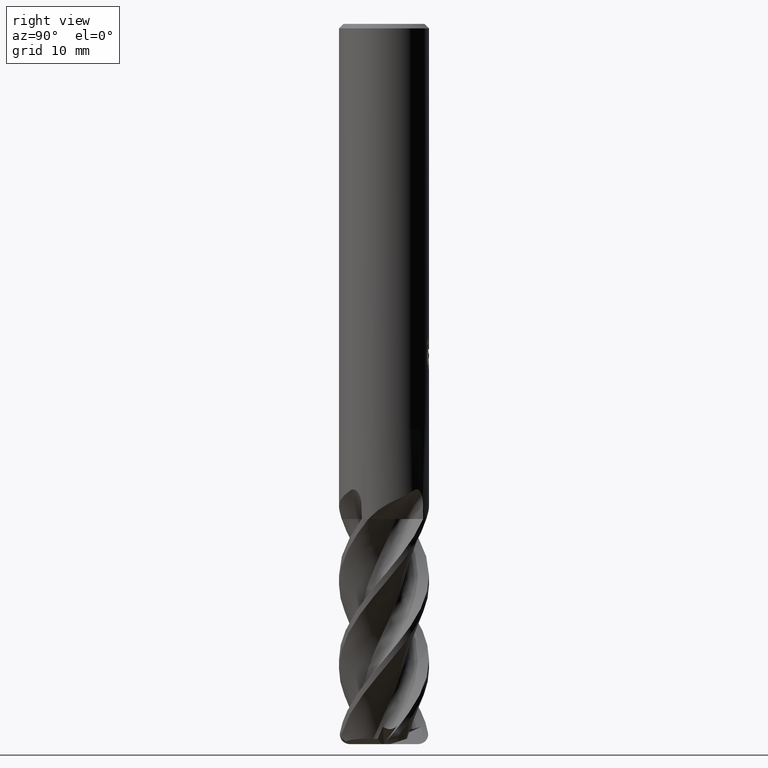
[diagram: clean part render]
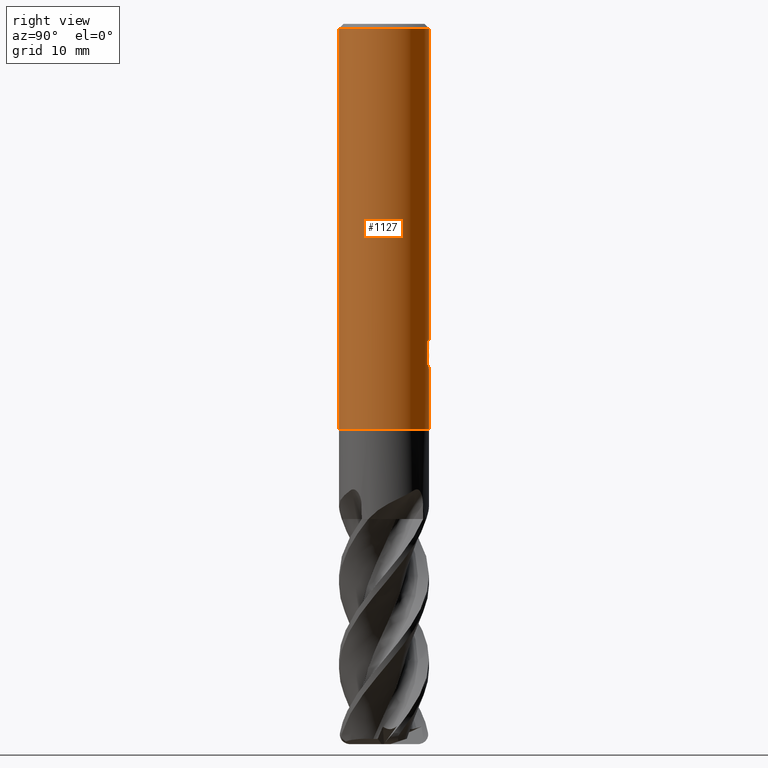
[diagram: same view with one face highlighted and labeled with its STEP entity id]
A machine part, right view. The second image highlights one B-rep face of the part: STEP entity #1127.
In plain terms, the highlighted cylindrical surface (partial cylindrical patch) has radius 4 mm, axis along (-0, -0, 1).
Its self-contained STEP definition (entity closure, byte-faithful):
#623=EDGE_CURVE('',#637,#641,#1667,.T.);
#637=VERTEX_POINT('',#1681);
#641=VERTEX_POINT('',#1685);
#679=VERTEX_POINT('',#1726);
#697=VERTEX_POINT('',#1747);
#729=EDGE_CURVE('',#1069,#901,#1782,.T.);
#753=EDGE_CURVE('',#1549,#1417,#1807,.T.);
#779=VERTEX_POINT('',#1834);
#781=EDGE_CURVE('',#679,#697,#1836,.T.);
#827=VERTEX_POINT('',#1885);
#859=EDGE_CURVE('',#1417,#637,#1918,.T.);
#867=VERTEX_POINT('',#1927);
#901=VERTEX_POINT('',#1969);
#931=EDGE_CURVE('',#901,#1549,#2000,.T.);
#1011=EDGE_CURVE('',#827,#679,#2087,.T.);
#1063=VERTEX_POINT('',#2141);
#1069=VERTEX_POINT('',#2147);
#1111=VERTEX_POINT('',#2191);
#1127=ADVANCED_FACE('',(#2207,#2208),#2209,.T.);
#1135=EDGE_CURVE('',#867,#1069,#2219,.T.);
#1149=EDGE_CURVE('',#1063,#867,#2234,.T.);
#1185=EDGE_CURVE('',#697,#1111,#2273,.T.);
#1197=EDGE_CURVE('',#641,#1457,#2287,.T.);
#1359=EDGE_CURVE('',#1457,#779,#2474,.T.);
#1417=VERTEX_POINT('',#2533);
#1457=VERTEX_POINT('',#2577);
#1475=EDGE_CURVE('',#827,#1111,#2597,.T.);
#1503=VERTEX_POINT('',#2627);
#1505=EDGE_CURVE('',#1503,#1063,#2629,.T.);
#1537=EDGE_CURVE('',#779,#1503,#2665,.T.);
#1549=VERTEX_POINT('',#2678);
#1667=B_SPLINE_CURVE_WITH_KNOTS('',3,(#2959,#2960,#2961,#2962,#2963,#2964,#2965,#2966,#2967,#2968,#2969,#2970,#2971,#2972,#2973,#2974,#2975,#2976,#2977,#2978,#2979,#2980,#2981,#2982,#2983,#2984,#2985),.UNSPECIFIED.,.F.,.F.,(4,2,3,2,2,2,2,2,2,2,2,2,4),(-0.482399188008131,-0.241199594004066,0.0,0.241199594004064,0.482399188008128,0.724223029271464,0.9660468705348,1.20681941744947,1.44759196436414,1.68867461116738,1.92975725797061,2.17083990477384,2.41192255157708),.UNSPECIFIED.);
#1681=CARTESIAN_POINT('',(0.710597095545329,3.93637546072558,-28.0001002461062));
#1685=CARTESIAN_POINT('',(0.0199999374997688,3.99995,-28.9137883624539));
#1726=CARTESIAN_POINT('',(0.0,4.0,-36.0));
#1747=CARTESIAN_POINT('',(4.89842541528951E-016,-4.0,-36.0));
#1782=LINE('',#3737,#3738);
#1807=LINE('',#3882,#3883);
#1834=CARTESIAN_POINT('',(0.509439885356677,3.96742624420515,-29.271488521346));
#1836=CIRCLE('',#4069,4.0);
#1885=CARTESIAN_POINT('',(0.0,4.0,-0.399999999999999));
#1918=B_SPLINE_CURVE_WITH_KNOTS('',3,(#4430,#4431,#4432,#4433,#4434,#4435),.UNSPECIFIED.,.F.,.F.,(4,2,4),(0.550876474883806,1.10175294976761,1.65185423385294),.UNSPECIFIED.);
#1927=CARTESIAN_POINT('',(0.257866222563656,3.99167947251038,-30.6665847976549));
#1969=CARTESIAN_POINT('',(0.776488765473096,3.92390942773837,-30.4522783924577));
#2000=B_SPLINE_CURVE_WITH_KNOTS('',3,(#5331,#5332,#5333,#5334,#5335,#5336),.UNSPECIFIED.,.F.,.F.,(4,2,4),(7.16072728266531,7.71082854825732,8.26170500393967),.UNSPECIFIED.);
#2087=LINE('',#6120,#6121);
#2141=CARTESIAN_POINT('',(0.0199999374997759,3.99995,-30.6938244903379));
#2147=CARTESIAN_POINT('',(0.776488765473097,3.92390942773837,-29.1733236971509));
#2191=CARTESIAN_POINT('',(4.89842541528951E-016,-4.0,-0.399999999999999));
#2207=FACE_OUTER_BOUND('',#6791,.T.);
#2208=FACE_BOUND('',#6792,.T.);
#2209=CYLINDRICAL_SURFACE('',#6793,4.0);
#2219=ELLIPSE('',#7017,12.1919782934791,4.0);
#2234=B_SPLINE_CURVE_WITH_KNOTS('',3,(#7073,#7074,#7075,#7076,#7077,#7078,#7079,#7080,#7081,#7082,#7083,#7084,#7085,#7086),.UNSPECIFIED.,.F.,.F.,(4,2,2,2,2,2,4),(4.95733749207013,5.50838380122003,6.05950526412701,6.33506599558049,6.61062672703398,6.88567738507847,7.16072804312297),.UNSPECIFIED.);
#2273=LINE('',#7538,#7539);
#2287=LINE('',#7770,#7771);
#2474=B_SPLINE_CURVE_WITH_KNOTS('',3,(#9593,#9594,#9595,#9596,#9597,#9598,#9599,#9600,#9601,#9602,#9603,#9604,#9605,#9606),.UNSPECIFIED.,.F.,.F.,(4,2,2,2,2,2,4),(2.78814193532245,3.186140861262,3.58413978720155,3.9821387131411,4.37912318714916,4.77610766115722,5.1758320595667),.UNSPECIFIED.);
#2533=CARTESIAN_POINT('',(1.18861630964378,3.81931816800444,-28.4579151090958));
#2577=CARTESIAN_POINT('',(0.0199999374997714,3.99995,-29.3358146720462));
#2597=CIRCLE('',#10444,4.0);
#2627=CARTESIAN_POINT('',(0.019999937499785,3.99995,-29.5127905605459));
#2629=LINE('',#10721,#10722);
#2665=ELLIPSE('',#11036,4.45971372817144,4.0);
#2678=CARTESIAN_POINT('',(1.18861630964378,3.81931816800444,-30.0357773959038));
#2959=CARTESIAN_POINT('',(0.591270698674169,3.95605851332982,-27.8344678539585));
#2960=CARTESIAN_POINT('',(0.647769671790733,3.94761420261085,-27.8910425646682));
#2961=CARTESIAN_POINT('',(0.696841080653836,3.93897337331235,-27.9627086408797));
#2962=CARTESIAN_POINT('',(0.76202381111568,3.92688406421869,-28.1199796971962));
#2963=CARTESIAN_POINT('',(0.778124477850712,3.92358538800541,-28.2056005723627));
#2964=CARTESIAN_POINT('',(0.778124477850712,3.92358538800541,-28.2860004370307));
#2965=CARTESIAN_POINT('',(0.778124477850712,3.92358538800541,-28.3664003016988));
#2966=CARTESIAN_POINT('',(0.762023811115681,3.92688406421869,-28.4520211768652));
#2967=CARTESIAN_POINT('',(0.696841080653838,3.93897337331235,-28.6092922331818));
#2968=CARTESIAN_POINT('',(0.647769671790732,3.94761420261085,-28.6809583093933));
#2969=CARTESIAN_POINT('',(0.534625500895564,3.96452467872,-28.7942541514908));
#2970=CARTESIAN_POINT('',(0.462882720090971,3.9739143868376,-28.8434616883065));
#2971=CARTESIAN_POINT('',(0.305424596762447,3.98910663956121,-28.9088359608539));
#2972=CARTESIAN_POINT('',(0.219692000121854,3.99477572164147,-28.9249920844591));
#2973=CARTESIAN_POINT('',(0.0589238801196738,4.00037113842804,-28.9249920844591));
#2974=CARTESIAN_POINT('',(-0.0266466636037332,4.00068563850923,-28.9089614258835));
#2975=CARTESIAN_POINT('',(-0.184016632015548,3.99654019148199,-28.8437975849122));
#2976=CARTESIAN_POINT('',(-0.255821268258577,3.99221601723601,-28.7946684219598));
#2977=CARTESIAN_POINT('',(-0.369270011978719,3.98332539991772,-28.6813167161151));
#2978=CARTESIAN_POINT('',(-0.418478431506147,3.97818494377544,-28.6094898415134));
#2979=CARTESIAN_POINT('',(-0.483775177561257,3.97077337948459,-28.4520164516185));
#2980=CARTESIAN_POINT('',(-0.499858817006064,3.96864475143106,-28.3663613192985));
#2981=CARTESIAN_POINT('',(-0.499858817006064,3.96864475143106,-28.205639554763));
#2982=CARTESIAN_POINT('',(-0.483775177561257,3.97077337948459,-28.119984422443));
#2983=CARTESIAN_POINT('',(-0.41847843150615,3.97818494377544,-27.9625110325481));
#2984=CARTESIAN_POINT('',(-0.36927001197872,3.98332539991772,-27.8906841579463));
#2985=CARTESIAN_POINT('',(-0.312509134916211,3.98777356937351,-27.8339718310461));
#3737=CARTESIAN_POINT('',(0.776488765473097,3.92390942773837,-29.8128010448043));
#3738=VECTOR('',#11391,1.0);
#3882=CARTESIAN_POINT('',(1.18861630964378,3.81931816800444,-29.2468462524998));
#3883=VECTOR('',#11402,1.0);
#4069=AXIS2_PLACEMENT_3D('',#11418,#11419,#11420);
#4430=CARTESIAN_POINT('',(1.31129922774667,3.77895413246985,-28.6904925897826));
#4431=CARTESIAN_POINT('',(1.23716094470124,3.80468013570727,-28.5123923480887));
#4432=CARTESIAN_POINT('',(1.12599239428804,3.84051425433622,-28.3506576473589));
#4433=CARTESIAN_POINT('',(0.870638001198906,3.90632168676194,-28.0954183984497));
#4434=CARTESIAN_POINT('',(0.708916589443108,3.94077688993501,-27.984288892285));
#4435=CARTESIAN_POINT('',(0.530824888471886,3.9646216638891,-27.9102037358949));
#5331=CARTESIAN_POINT('',(0.530824908337292,3.96462166122932,-30.5834887547648));
#5332=CARTESIAN_POINT('',(0.708916603241935,3.94077688717912,-30.5094036008586));
#5333=CARTESIAN_POINT('',(0.870638009471879,3.90632168476773,-30.398274098436));
#5334=CARTESIAN_POINT('',(1.12599239369796,3.84051425435027,-30.1430348582084));
#5335=CARTESIAN_POINT('',(1.23716094021759,3.80468013710735,-29.9813001630698));
#5336=CARTESIAN_POINT('',(1.31129922066112,3.77895413492855,-29.8031999275423));
#6120=CARTESIAN_POINT('',(-4.89842541528951E-016,4.0,-18.2));
#6121=VECTOR('',#11674,1.0);
#6791=EDGE_LOOP('',(#11757,#11758,#11759,#11760));
#6792=EDGE_LOOP('',(#11761,#11762,#11763,#11764,#11765,#11766,#11767,#11768,#11769,#11770,#11771));
#6793=AXIS2_PLACEMENT_3D('',#11772,#11773,#11774);
#7017=AXIS2_PLACEMENT_3D('',#11805,#11806,#11807);
#7073=CARTESIAN_POINT('',(-1.36175335856805,3.76106737382204,-29.80312138195));
#7074=CARTESIAN_POINT('',(-1.28766978639953,3.78789046737408,-29.9811198068732));
#7075=CARTESIAN_POINT('',(-1.17663690404377,3.82530889808831,-30.1426946628473));
#7076=CARTESIAN_POINT('',(-0.921579810523459,3.89463194488682,-30.3978711912456));
#7077=CARTESIAN_POINT('',(-0.759922009067669,3.93127665729478,-30.509076166199));
#7078=CARTESIAN_POINT('',(-0.492720561797991,3.97055800265641,-30.6203575090144));
#7079=CARTESIAN_POINT('',(-0.399594556265919,3.98110484898349,-30.6485560284185));
#7080=CARTESIAN_POINT('',(-0.211766791343593,3.99550077638431,-30.6856480164513));
#7081=CARTESIAN_POINT('',(-0.117062254808857,3.99934163433615,-30.6945306122803));
#7082=CARTESIAN_POINT('',(0.0664712296567955,4.00049840013219,-30.6945306122803));
#7083=CARTESIAN_POINT('',(0.161048385078536,3.99786226561239,-30.6856802751831));
#7084=CARTESIAN_POINT('',(0.348701139326367,3.98588093055625,-30.6486756834131));
#7085=CARTESIAN_POINT('',(0.441779296933124,3.97654402221767,-30.6205317208671));
#7086=CARTESIAN_POINT('',(0.530825151871004,3.96462162862247,-30.5834891406098));
#7538=CARTESIAN_POINT('',(4.89842541528951E-016,-4.0,-18.2));
#7539=VECTOR('',#11869,1.0);
#7770=CARTESIAN_POINT('',(0.019999937499785,3.99995,-29.3473154291933));
#7771=VECTOR('',#11890,1.0);
#9593=CARTESIAN_POINT('',(-0.839639930120254,3.91088286551102,-27.8867546609877));
#9594=CARTESIAN_POINT('',(-0.893456726120442,3.89932877080168,-28.0163186730283));
#9595=CARTESIAN_POINT('',(-0.920085402440226,3.89274233057062,-28.1574761638438));
#9596=CARTESIAN_POINT('',(-0.920085402440226,3.89274233057062,-28.4228087811369));
#9597=CARTESIAN_POINT('',(-0.893456726120442,3.89932877080168,-28.5639662719524));
#9598=CARTESIAN_POINT('',(-0.785823134120091,3.92243696022038,-28.8230942960337));
#9599=CARTESIAN_POINT('',(-0.704842888749748,3.9385421061724,-28.9411120576966));
#9600=CARTESIAN_POINT('',(-0.518436722554853,3.96737890598685,-29.1272390238667));
#9601=CARTESIAN_POINT('',(-0.400501666076801,3.9820125668256,-29.2079920847227));
#9602=CARTESIAN_POINT('',(-0.14167055177908,3.99959436951154,-29.3152571060255));
#9603=CARTESIAN_POINT('',(-0.000740255857727135,4.00218817566361,-29.3417442320818));
#9604=CARTESIAN_POINT('',(0.264685784501636,3.99345648827941,-29.3417442320818));
#9605=CARTESIAN_POINT('',(0.406040230589981,3.98148410418381,-29.3149287653295));
#9606=CARTESIAN_POINT('',(0.535570405748399,3.96398339306391,-29.2610217577715));
#10444=AXIS2_PLACEMENT_3D('',#12281,#12282,#12283);
#10721=CARTESIAN_POINT('',(0.019999937499785,3.99995,-29.3473154291933));
#10722=VECTOR('',#12306,1.0);
#11036=AXIS2_PLACEMENT_3D('',#12345,#12346,#12347);
#11391=DIRECTION('',(0.0,0.0,-1.0));
#11402=DIRECTION('',(-0.0,-0.0,1.0));
#11418=CARTESIAN_POINT('',(0.0,0.0,-36.0));
#11419=DIRECTION('',(0.0,0.0,-1.0));
#11420=DIRECTION('',(0.0,1.0,0.0));
#11674=DIRECTION('',(0.0,0.0,-1.0));
#11757=ORIENTED_EDGE('',*,*,#1011,.F.);
#11758=ORIENTED_EDGE('',*,*,#1475,.T.);
#11759=ORIENTED_EDGE('',*,*,#1185,.F.);
#11760=ORIENTED_EDGE('',*,*,#781,.F.);
#11761=ORIENTED_EDGE('',*,*,#1537,.T.);
#11762=ORIENTED_EDGE('',*,*,#1505,.T.);
#11763=ORIENTED_EDGE('',*,*,#1149,.T.);
#11764=ORIENTED_EDGE('',*,*,#1135,.T.);
#11765=ORIENTED_EDGE('',*,*,#729,.T.);
#11766=ORIENTED_EDGE('',*,*,#931,.T.);
#11767=ORIENTED_EDGE('',*,*,#753,.T.);
#11768=ORIENTED_EDGE('',*,*,#859,.T.);
#11769=ORIENTED_EDGE('',*,*,#623,.T.);
#11770=ORIENTED_EDGE('',*,*,#1197,.T.);
#11771=ORIENTED_EDGE('',*,*,#1359,.T.);
#11772=CARTESIAN_POINT('',(0.0,0.0,-18.2));
#11773=DIRECTION('',(-0.0,-0.0,1.0));
#11774=DIRECTION('',(0.0,1.0,0.0));
#11805=CARTESIAN_POINT('',(0.0,0.0,-31.4090546431191));
#11806=DIRECTION('',(0.944648353914092,0.0,-0.328084573619969));
#11807=DIRECTION('',(0.328084573619968,-0.0,0.944648353914092));
#11869=DIRECTION('',(-0.0,-0.0,1.0));
#11890=DIRECTION('',(0.0,0.0,-1.0));
#12281=CARTESIAN_POINT('',(0.0,0.0,-0.399999999999999));
#12282=DIRECTION('',(0.0,0.0,-1.0));
#12283=DIRECTION('',(0.0,1.0,0.0));
#12306=DIRECTION('',(0.0,0.0,-1.0));
#12345=CARTESIAN_POINT('',(0.0,0.0,-29.5226508625578));
#12346=DIRECTION('',(-0.442195774284071,0.0,0.896918556617774));
#12347=DIRECTION('',(0.896918556617774,-0.0,0.442195774284071));